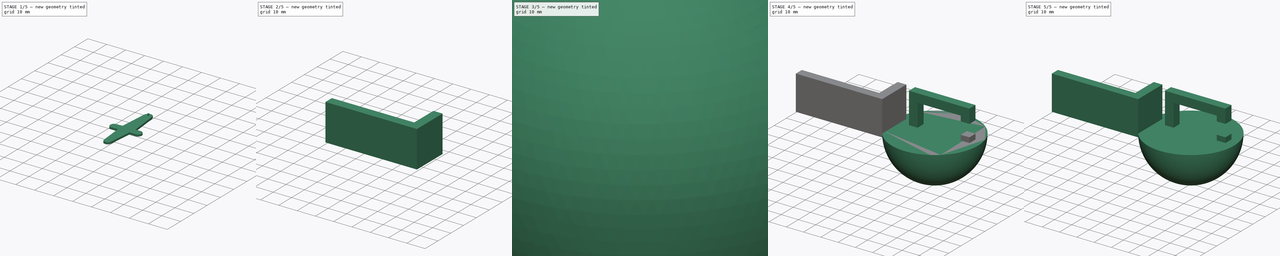
[diagram: build sequence overview — one tinted view per stage of 5, left to right]
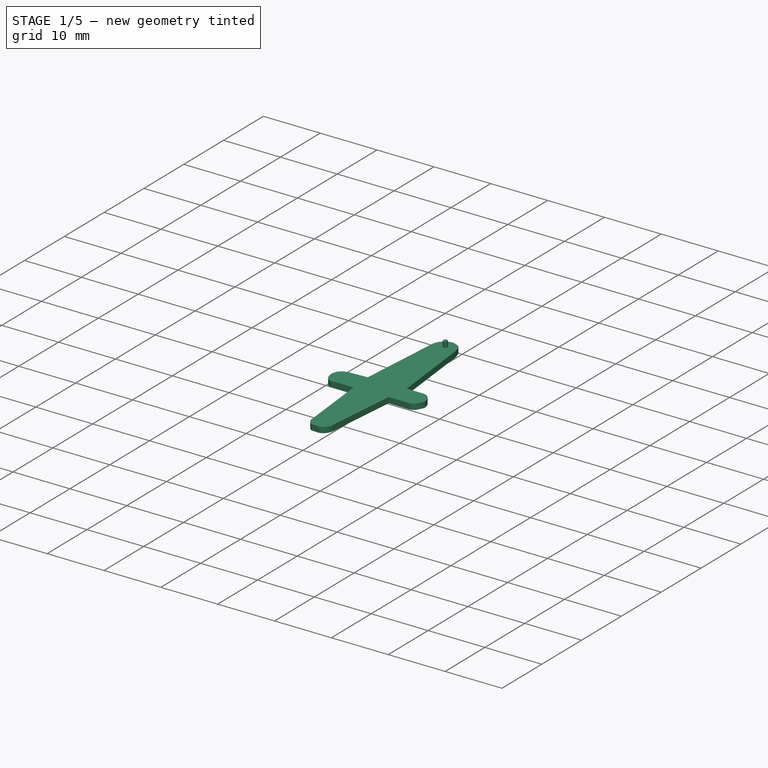
[diagram: stage 1 of 5 — iso view after this stage's code; geometry added in this stage tinted green]
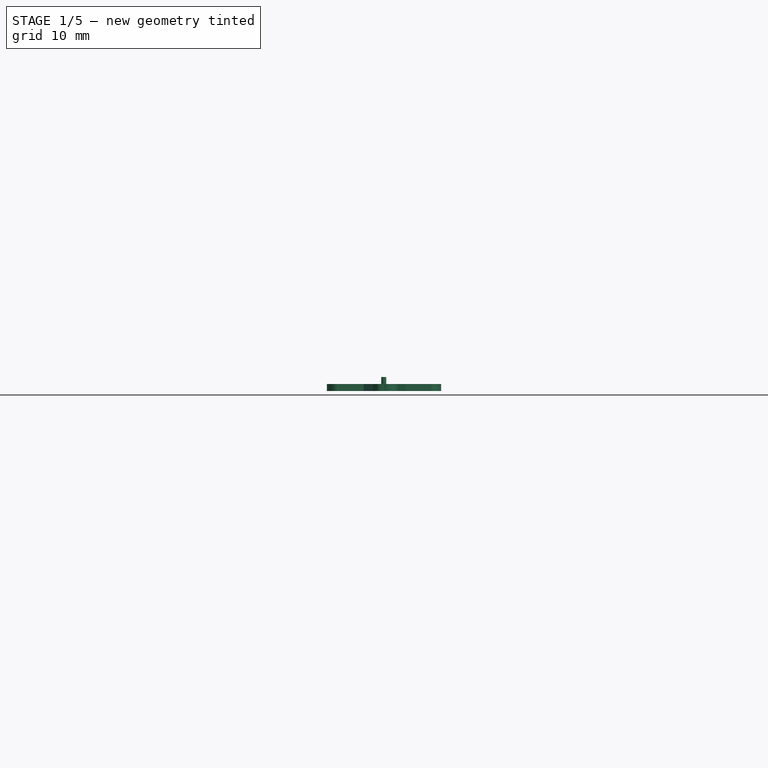
[diagram: stage 1 of 5 — front view after this stage's code; geometry added in this stage tinted green]
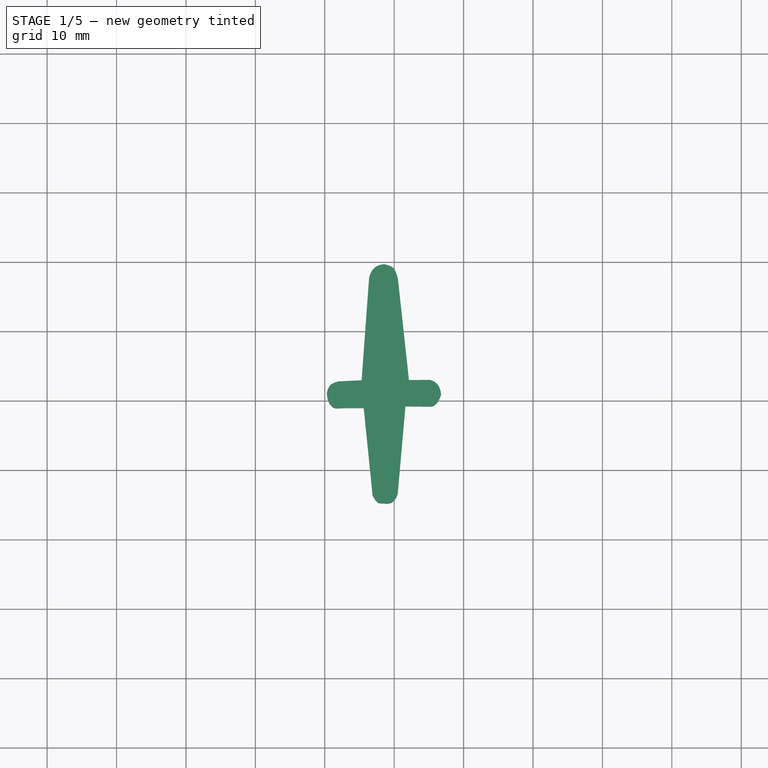
[diagram: stage 1 of 5 — top view after this stage's code; geometry added in this stage tinted green]
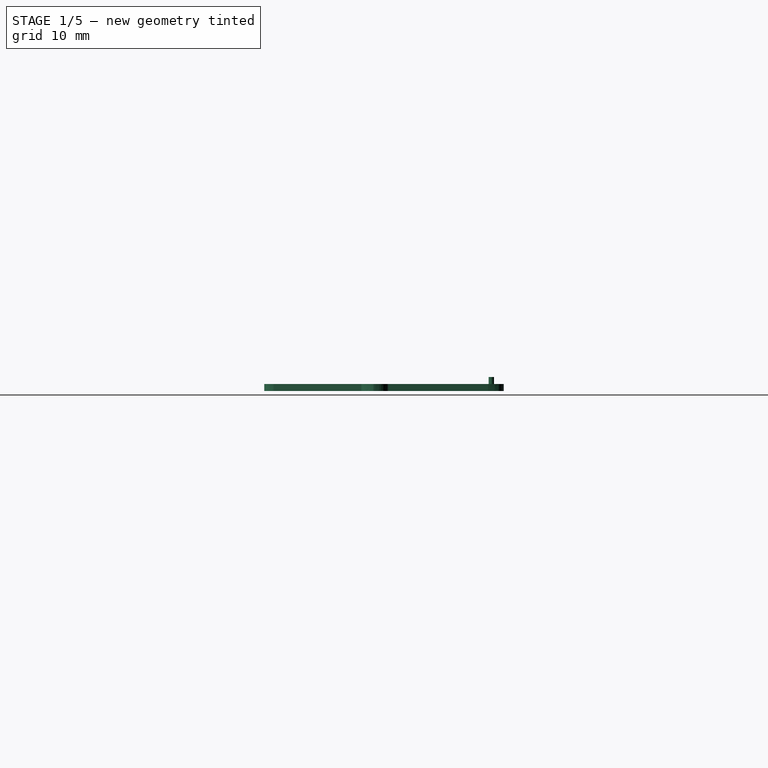
[diagram: stage 1 of 5 — right view after this stage's code; geometry added in this stage tinted green]
FCSTD DOCUMENT  (FreeCAD 0.20R29177 +233 (Git))
Label: pinza_union_base_agarre
License: All rights reserved
LicenseURL: http://en.wikipedia.org/wiki/All_rights_reserved
objects: Part::Extrusion×6, Part::Fuse×4, Sketcher::SketchObject×3, Part::Cut×3, Part::Feature×3, Part::Sphere×2, Part::Box×1, Part::MultiFuse×1
note: 23 computed .brp shape members not serialized (recipe doc carries the construction recipe); baked Part::Feature solids carry a one-line shape summary decoded from their .brp

FEATURE [Part::Feature] circle1174
  Placement = pos=(80.8508,-10.0656,0) rot=(0,0,1;0rad)
  shape: bbox 0.8152 x 0.9368 x 1.995e-06 mm, 0 faces, 0 solids (baked)
FEATURE [Part::Extrusion] Extrude005
  Base = -> circle1174
  Dir = (0,0,1)
  DirMode = 2
  FaceMakerClass = Part::FaceMakerBullseye
  LengthFwd = 2
  LengthRev = 0
  Placement = pos=(22.5,0,0) rot=(0,0,1;0rad)
  Solid = true
  Symmetric = false
FEATURE [Part::Feature] path284
  shape: bbox 16.5 x 34.62 x 2e-07 mm, 0 faces, 0 solids (baked)
FEATURE [Part::Extrusion] Extrude004
  Base = -> path284
  Dir = (0,0,1)
  DirMode = 0
  FaceMakerClass = Part::FaceMakerBullseye
  LengthFwd = 1
  LengthRev = 0
  Solid = true
  Symmetric = false
FEATURE [Part::Fuse] Fusion002
  Base = -> Extrude004
  Tool = -> Extrude005
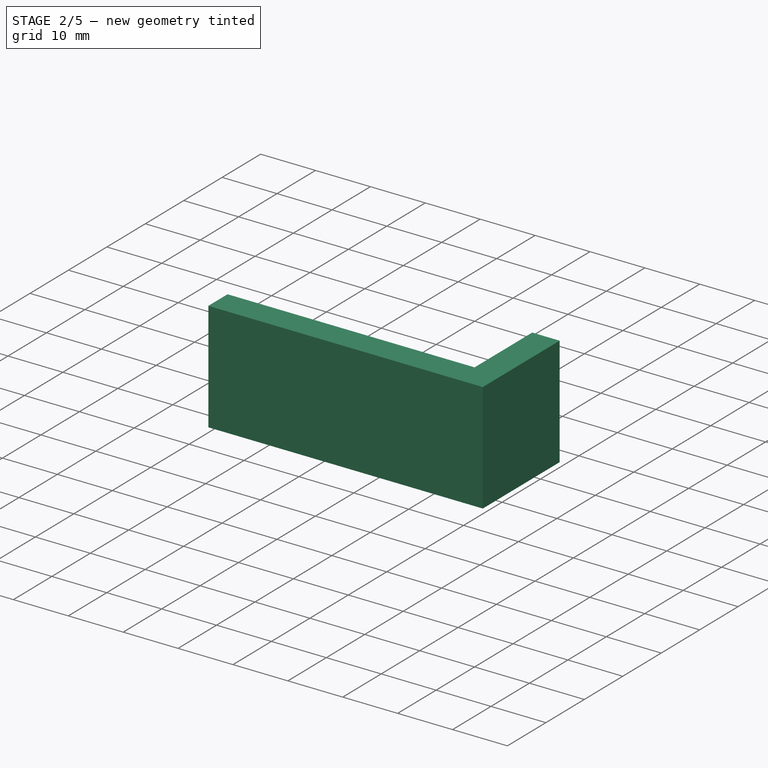
[diagram: stage 2 of 5 — iso view after this stage's code; geometry added in this stage tinted green]
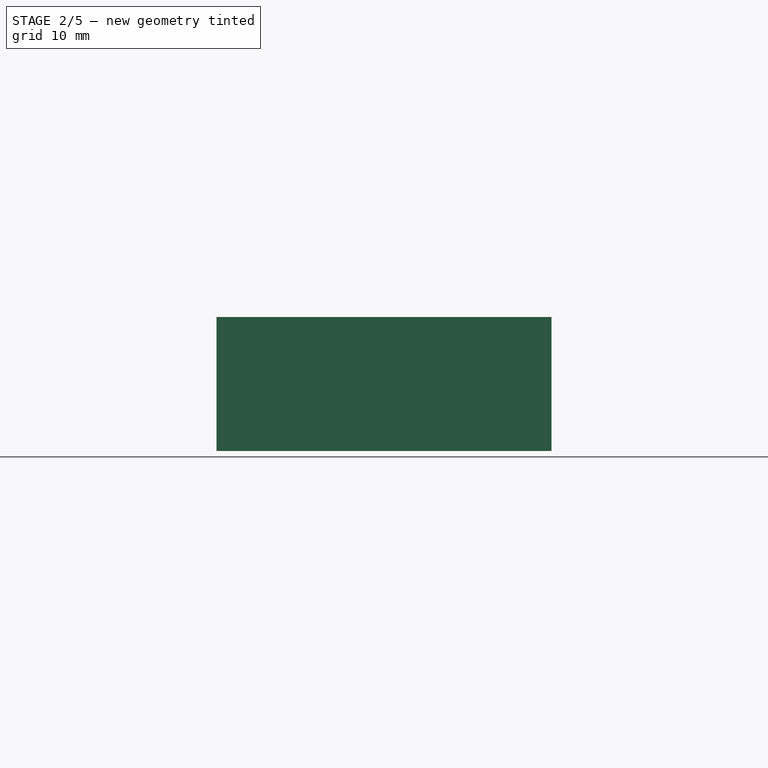
[diagram: stage 2 of 5 — front view after this stage's code; geometry added in this stage tinted green]
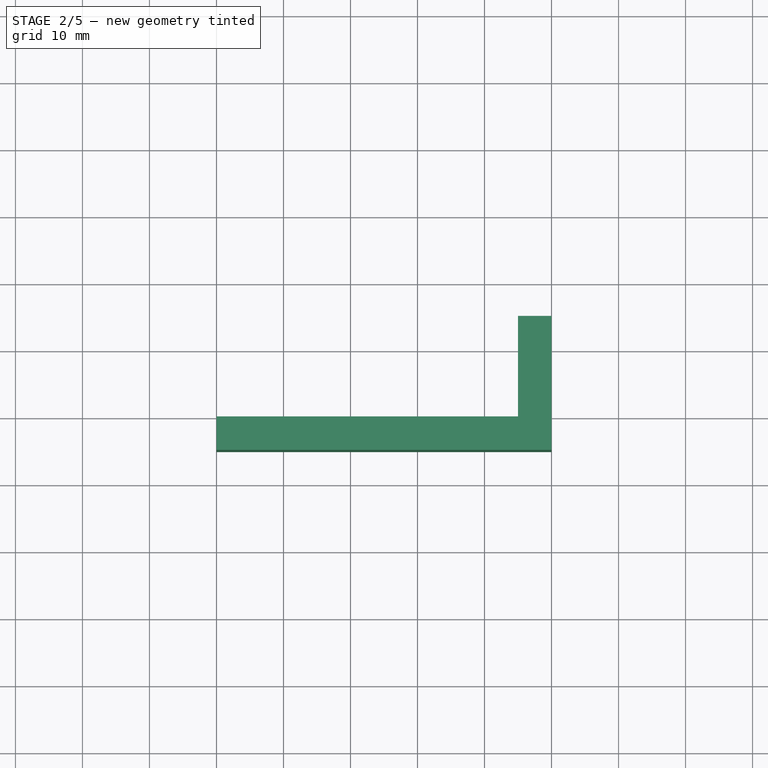
[diagram: stage 2 of 5 — top view after this stage's code; geometry added in this stage tinted green]
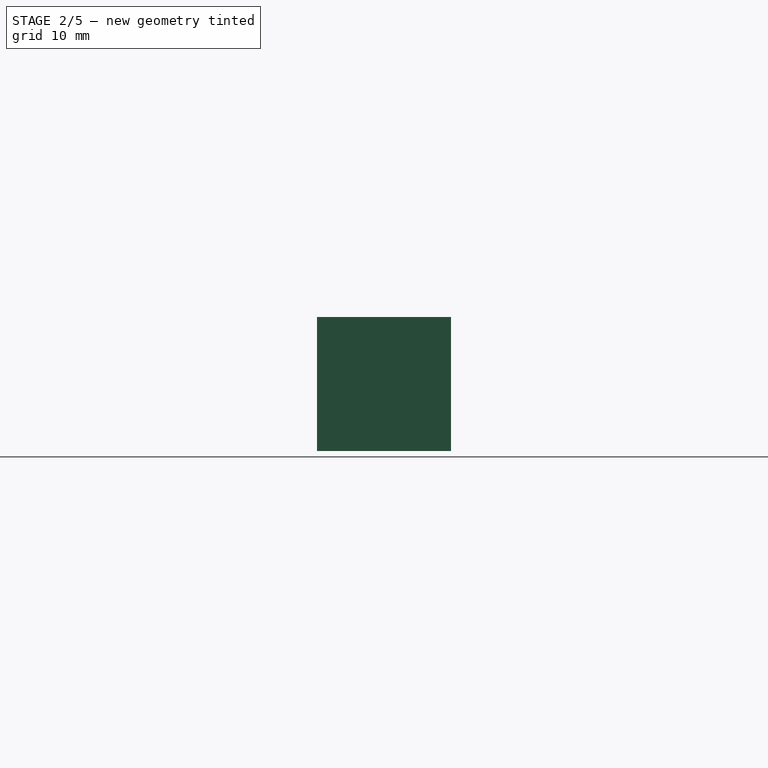
[diagram: stage 2 of 5 — right view after this stage's code; geometry added in this stage tinted green]
FEATURE [Sketcher::SketchObject] Sketch002
  FullyConstrained = true
  MapMode = 2
  sketch-geometry (6):
    g0: LineSegment StartX=0 StartY=0 StartZ=0 EndX=0 EndY=-5 EndZ=0
    g1: LineSegment StartX=0 StartY=-5 StartZ=0 EndX=50 EndY=-5 EndZ=0
    g2: LineSegment StartX=50 StartY=-5 StartZ=0 EndX=50 EndY=15 EndZ=0
    g3: LineSegment StartX=50 StartY=15 StartZ=0 EndX=45 EndY=15 EndZ=0
    g4: LineSegment StartX=45 StartY=15 StartZ=0 EndX=45 EndY=0 EndZ=0
    g5: LineSegment StartX=45 StartY=0 StartZ=0 EndX=0 EndY=0 EndZ=0
  constraints (17):
    c: Coincident(g-1,g0)
    c: PointOnObject(g0,g-2)
    c: Coincident(g0,g1)
    c: Horizontal(g1)
    c: Coincident(g1,g2)
    c: Vertical(g2)
    c: Coincident(g2,g3)
    c: Horizontal(g3)
    c: Coincident(g3,g4)
    c: PointOnObject(g4,g-1)
    c: Vertical(g4)
    c: Coincident(g4,g5)
    c: Coincident(g5,g0)
    c: Distance(g1) = 50
    c: Distance(g0) = 5
    c: Distance(g3) = 5
    c: Distance(g4) = 15
FEATURE [Part::Extrusion] Extrude007
  Base = -> Sketch002
  Dir = (0,0,1)
  DirMode = 2
  FaceMakerClass = Part::FaceMakerBullseye
  LengthFwd = 20
  LengthRev = 0
  Solid = true
  Symmetric = false
FEATURE [Part::Feature] circle1173
  Placement = pos=(80.8508,-13.1887,0) rot=(0,0,1;0rad)
  shape: bbox 0.8152 x 0.9368 x 1.995e-06 mm, 0 faces, 0 solids (baked)
FEATURE [Part::Extrusion] Extrude006
  Base = -> circle1173
  Dir = (0,0,1)
  DirMode = 2
  FaceMakerClass = Part::FaceMakerBullseye
  LengthFwd = 2
  LengthRev = 0
  Placement = pos=(22.5,0,0) rot=(0,0,1;0rad)
  Solid = true
  Symmetric = false
FEATURE [Part::Fuse] Fusion003
  Base = -> Fusion002
  Placement = pos=(46,2.9e-14,98) rot=(0.57735,0.57735,-0.57735;2.0944rad)
  Tool = -> Extrude006
FEATURE [Part::Cut] Cut002
  Base = -> Extrude007
  Placement = pos=(-60,-10,-15) rot=(0,0,1;0rad)
  Tool = -> Fusion003
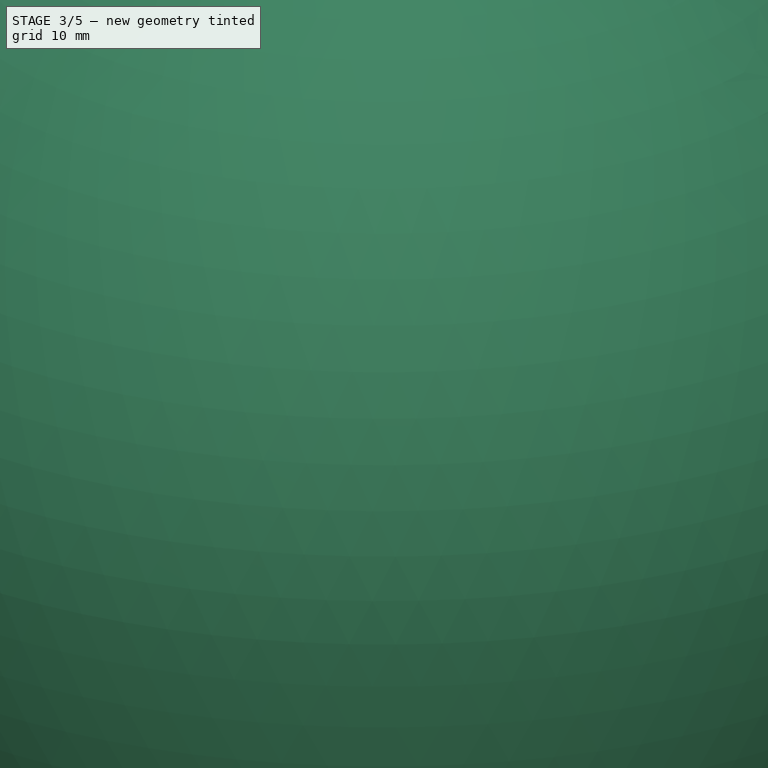
[diagram: stage 3 of 5 — iso view after this stage's code; geometry added in this stage tinted green]
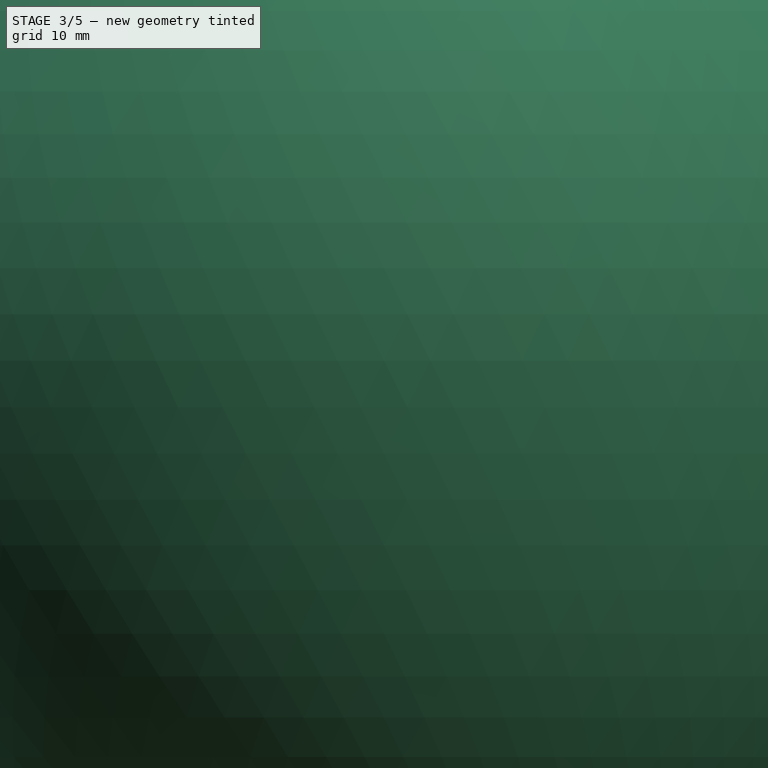
[diagram: stage 3 of 5 — front view after this stage's code; geometry added in this stage tinted green]
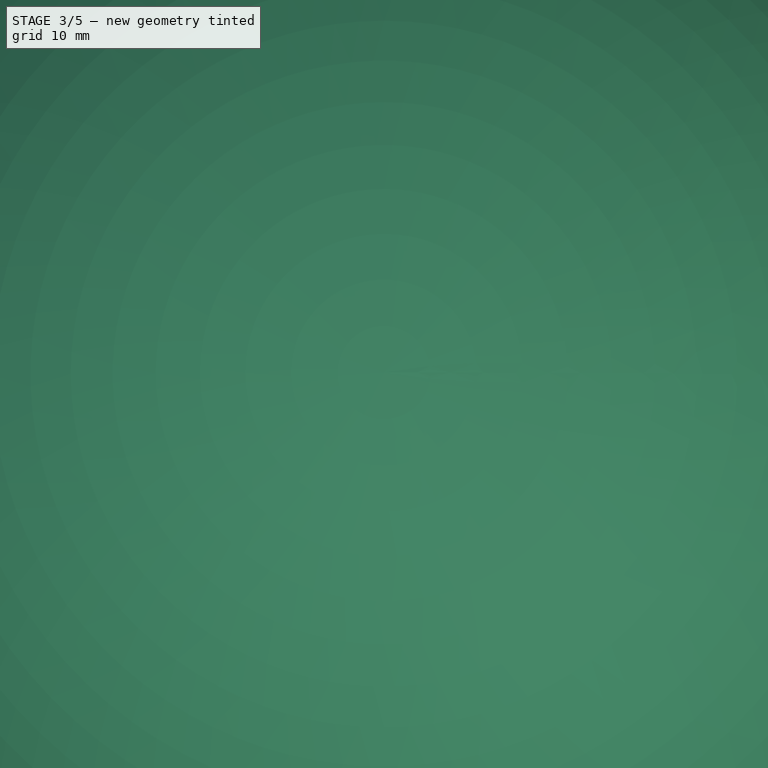
[diagram: stage 3 of 5 — top view after this stage's code; geometry added in this stage tinted green]
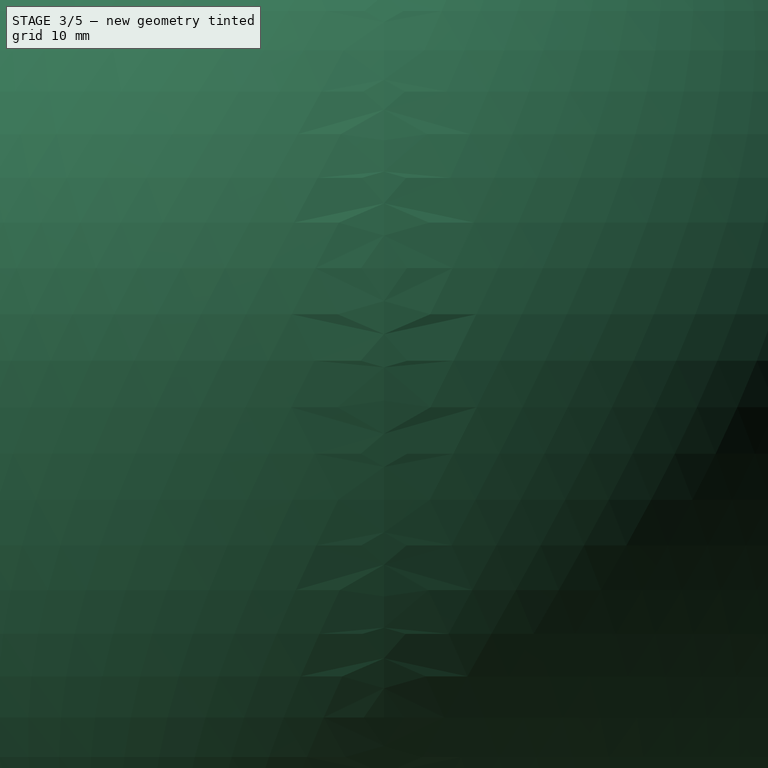
[diagram: stage 3 of 5 — right view after this stage's code; geometry added in this stage tinted green]
FEATURE [Part::Sphere] Sphere  label="Esfera"
  Angle1 = -90
  Angle2 = 90
  Angle3 = 360
  AttacherType = Attacher::AttachEngine3D
  Radius = 150
FEATURE [Part::Sphere] Sphere001  label="Esfera001"
  Angle1 = -90
  Angle2 = 90
  Angle3 = 360
  AttacherType = Attacher::AttachEngine3D
  Radius = 25
FEATURE [Sketcher::SketchObject] Sketch001
  FullyConstrained = false
  Placement = pos=(0,0,0) rot=(1,0,0;1.5708rad)
  sketch-geometry (4):
    g0: LineSegment StartX=25 StartY=-13 StartZ=0 EndX=25 EndY=-10 EndZ=0
    g1: LineSegment StartX=30.0182 StartY=-13 StartZ=0 EndX=30.0182 EndY=-10 EndZ=0
    g2: LineSegment StartX=25 StartY=-10 StartZ=0 EndX=30.0182 EndY=-10 EndZ=0
    g3: LineSegment StartX=25 StartY=-13 StartZ=0 EndX=30.0182 EndY=-13 EndZ=0
  constraints (8):
    c: Vertical(g0)
    c: DistanceY(g0,g0) = 3
    c: Vertical(g1)
    c: DistanceY(g1,g1) = 3
    c: Coincident(g2,g0)
    c: Coincident(g2,g1)
    c: Coincident(g3,g0)
    c: Coincident(g3,g1)
FEATURE [Part::Extrusion] Extrude001
  Base = -> Sketch001
  Dir = (0,5,0)
  DirMode = 0
  FaceMakerClass = Part::FaceMakerBullseye
  LengthFwd = 5
  LengthRev = 0
  Solid = true
  Symmetric = false
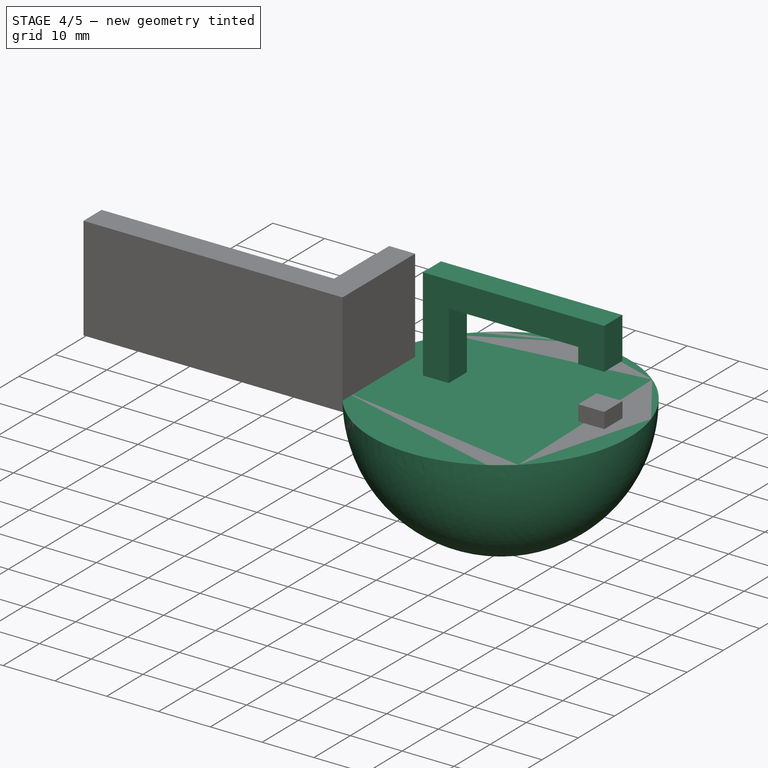
[diagram: stage 4 of 5 — iso view after this stage's code; geometry added in this stage tinted green]
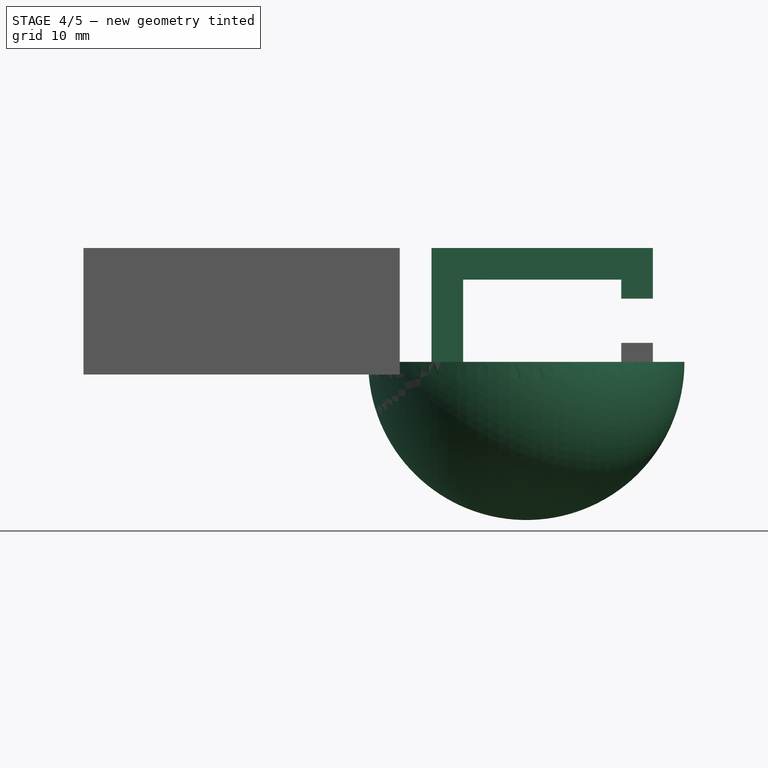
[diagram: stage 4 of 5 — front view after this stage's code; geometry added in this stage tinted green]
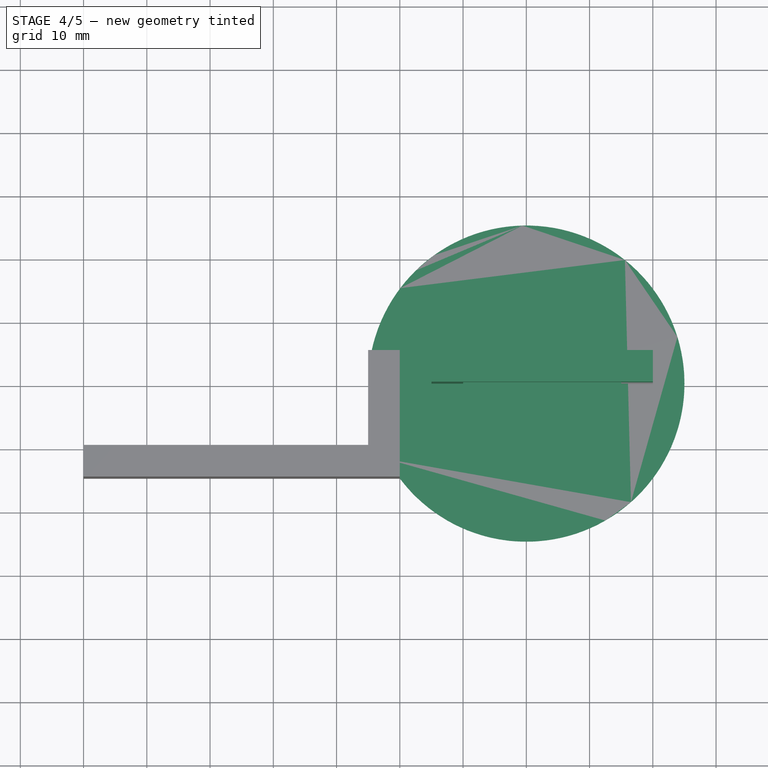
[diagram: stage 4 of 5 — top view after this stage's code; geometry added in this stage tinted green]
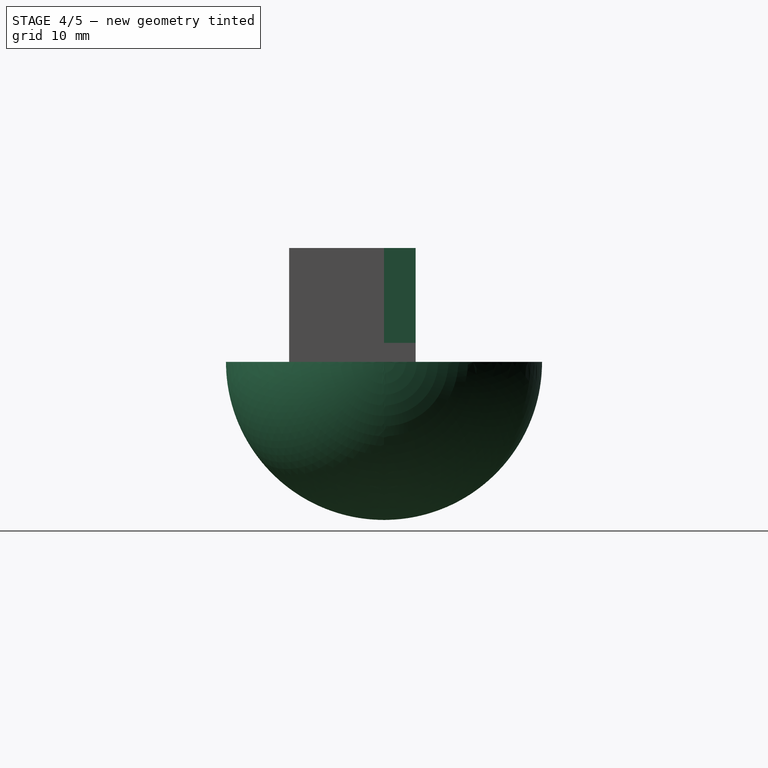
[diagram: stage 4 of 5 — right view after this stage's code; geometry added in this stage tinted green]
FEATURE [Sketcher::SketchObject] Sketch
  FullyConstrained = false
  Placement = pos=(0,0,0) rot=(1,0,0;1.5708rad)
  sketch-geometry (8):
    g0: LineSegment StartX=0 StartY=0 StartZ=0 EndX=25 EndY=0 EndZ=0
    g1: LineSegment StartX=0 StartY=0 StartZ=0 EndX=0 EndY=-13 EndZ=0
    g2: LineSegment StartX=25 StartY=0 StartZ=0 EndX=25 EndY=-3 EndZ=0
    g3: LineSegment StartX=0 StartY=-13 StartZ=0 EndX=-5 EndY=-13 EndZ=0
    g4: LineSegment StartX=25 StartY=-3 StartZ=0 EndX=30 EndY=-3 EndZ=0
    g5: LineSegment StartX=-5 StartY=-13 StartZ=0 EndX=-5 EndY=5 EndZ=0
    g6: LineSegment StartX=30 StartY=-3 StartZ=0 EndX=30 EndY=5 EndZ=0
    g7: LineSegment StartX=-5 StartY=5 StartZ=0 EndX=30 EndY=5 EndZ=0
  constraints (20):
    c: Coincident(g0,g-1)
    c: Horizontal(g0)
    c: Coincident(g1,g0)
    c: Vertical(g1)
    c: Coincident(g2,g0)
    c: Vertical(g2)
    c: DistanceY(g2,g2) = 3
    c: Coincident(g3,g1)
    c: Horizontal(g3)
    c: Coincident(g4,g2)
    c: Horizontal(g4)
    c: Coincident(g5,g3)
    c: Coincident(g6,g4)
    c: Vertical(g6)
    c: Vertical(g5)
    c: DistanceY(g5,g5) = 18
    c: DistanceY(g6,g6) = 8
    c: Coincident(g7,g5)
    c: Coincident(g7,g6)
    c: Horizontal(g7)
FEATURE [Part::Extrusion] Extrude
  Base = -> Sketch
  Dir = (0,5,0)
  DirMode = 0
  FaceMakerClass = Part::FaceMakerBullseye
  LengthFwd = 5
  LengthRev = 0
  Solid = true
  Symmetric = false
FEATURE [Part::Box] Box  label="Cubo"
  AttacherType = Attacher::AttachEngine3D
  Height = 320
  Length = 210
  Placement = pos=(0,-151,-150) rot=(0,0,1;0rad)
  Width = 320
FEATURE [Part::Cut] Cut
  Base = -> Sphere
  Tool = -> Box
FEATURE [Part::Cut] Cut001
  Base = -> Sphere001
  Placement = pos=(10,0,-13) rot=(0,1,0;1.5708rad)
  Tool = -> Cut
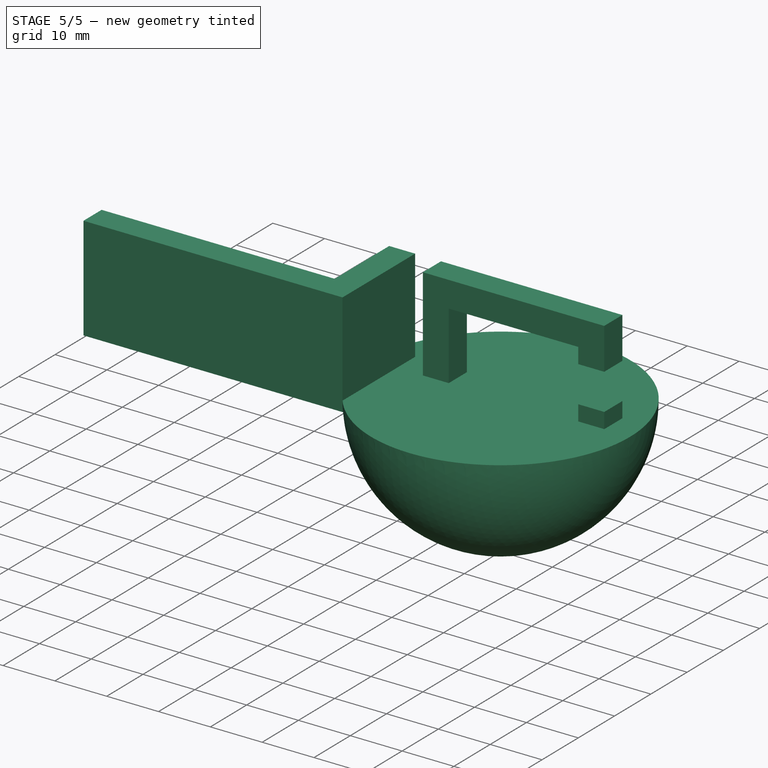
[diagram: stage 5 of 5 — iso view after this stage's code; geometry added in this stage tinted green]
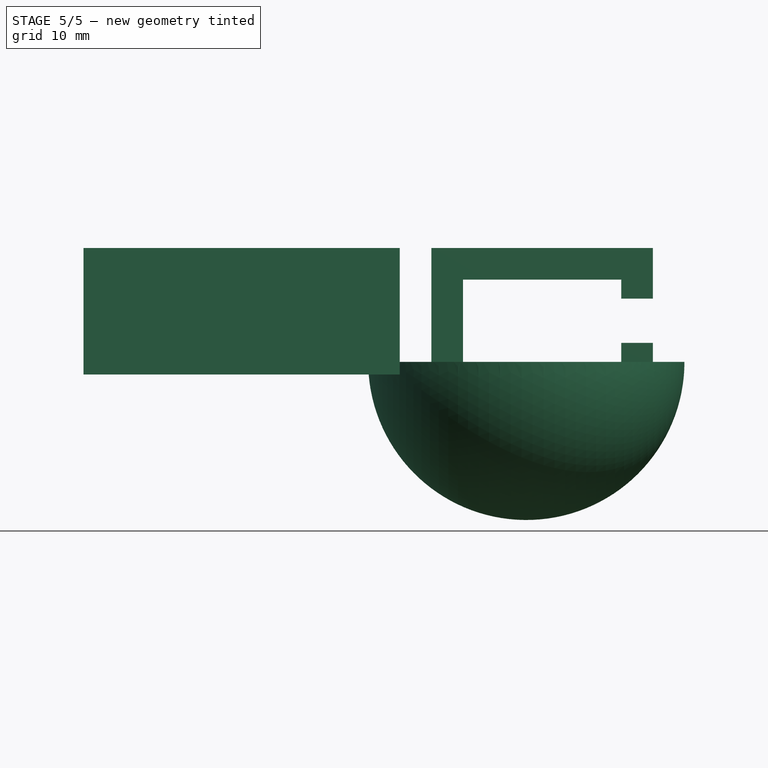
[diagram: stage 5 of 5 — front view after this stage's code; geometry added in this stage tinted green]
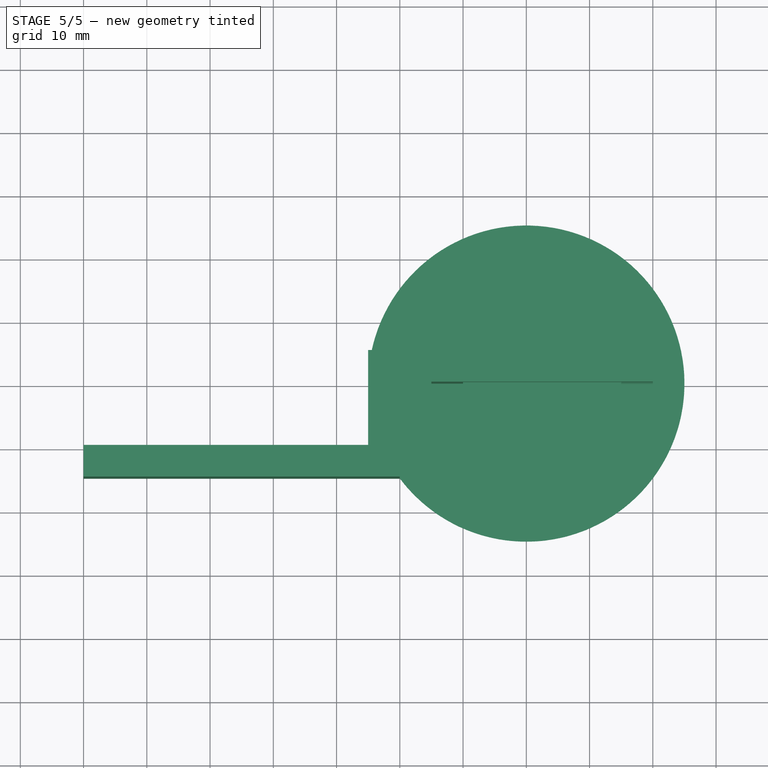
[diagram: stage 5 of 5 — top view after this stage's code; geometry added in this stage tinted green]
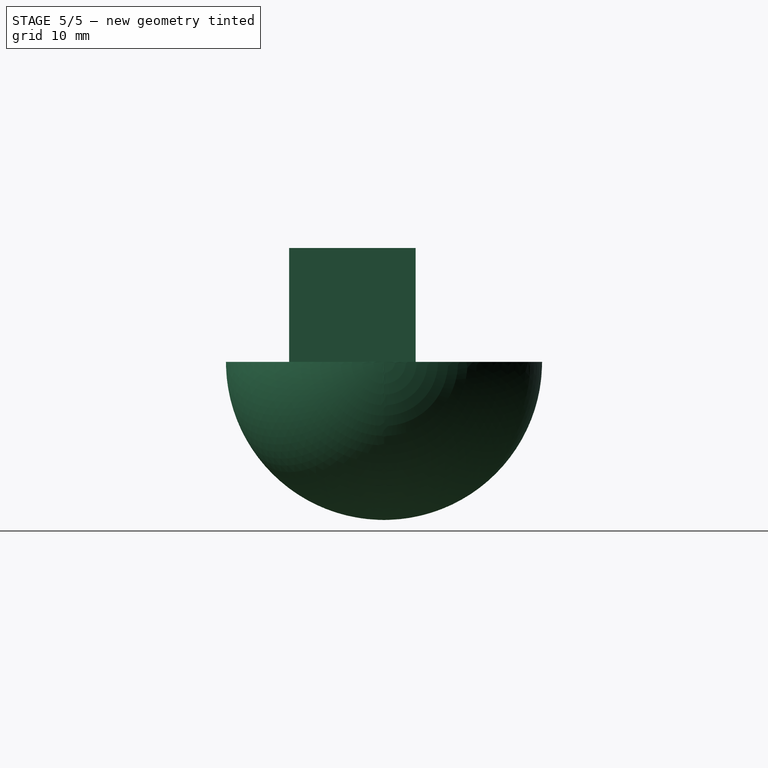
[diagram: stage 5 of 5 — right view after this stage's code; geometry added in this stage tinted green]
FEATURE [Part::MultiFuse] Fusion
  Shapes = -> [Extrude,Cut001]
FEATURE [Part::Fuse] Fusion001
  Base = -> Fusion
  Tool = -> Extrude001
FEATURE [Part::Fuse] Fusion004
  Base = -> Fusion001
  Tool = -> Cut002
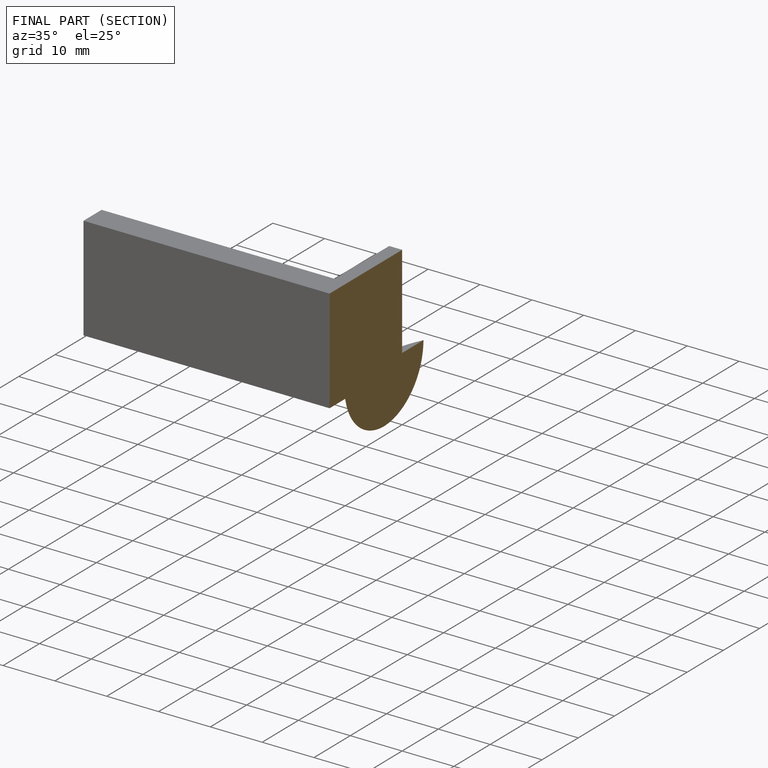
[diagram: finished part — half-section view (interior)]
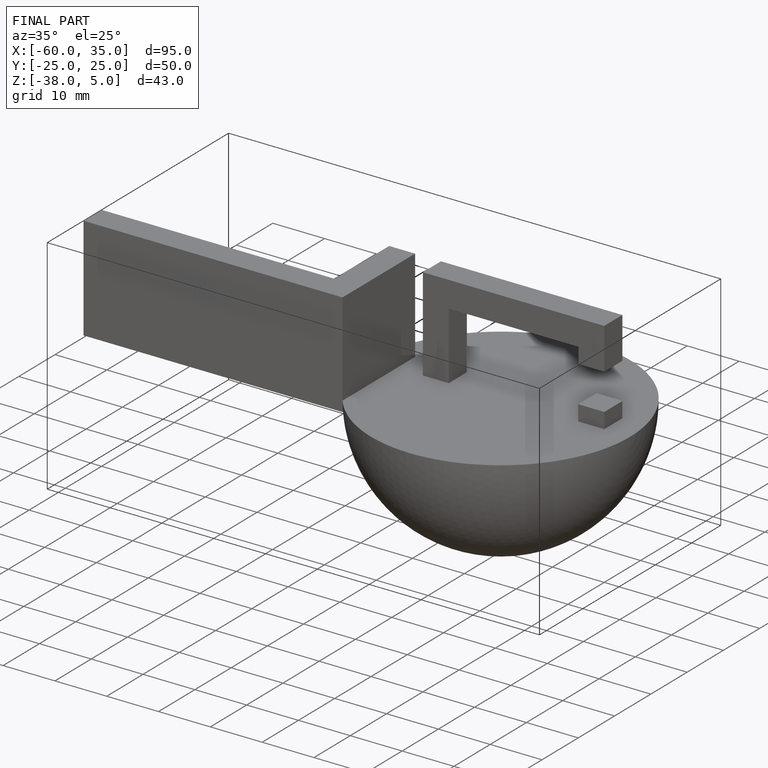
[diagram: finished part — iso view with bounding-box wireframe]
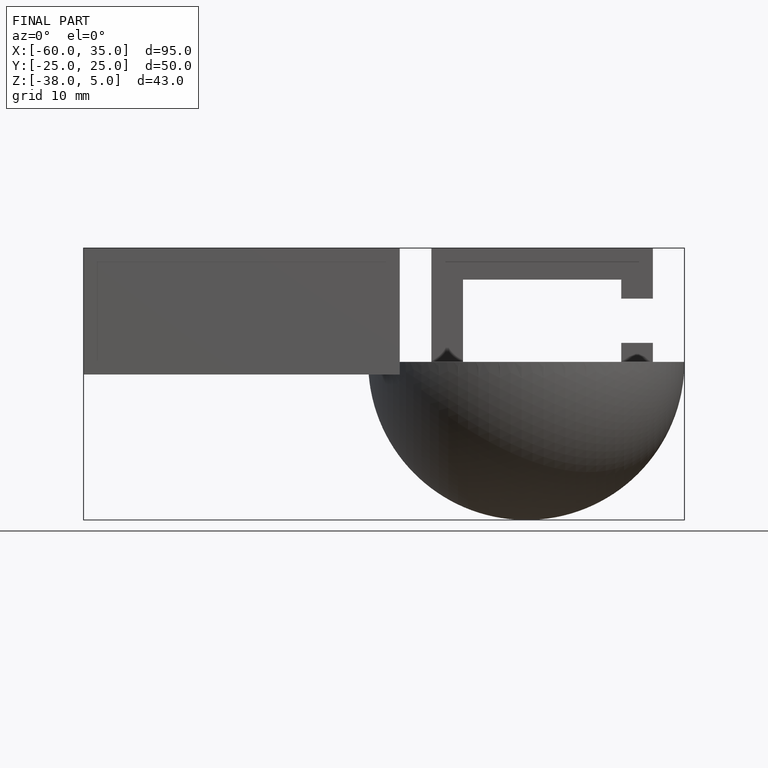
[diagram: finished part — front view with bounding-box wireframe]
